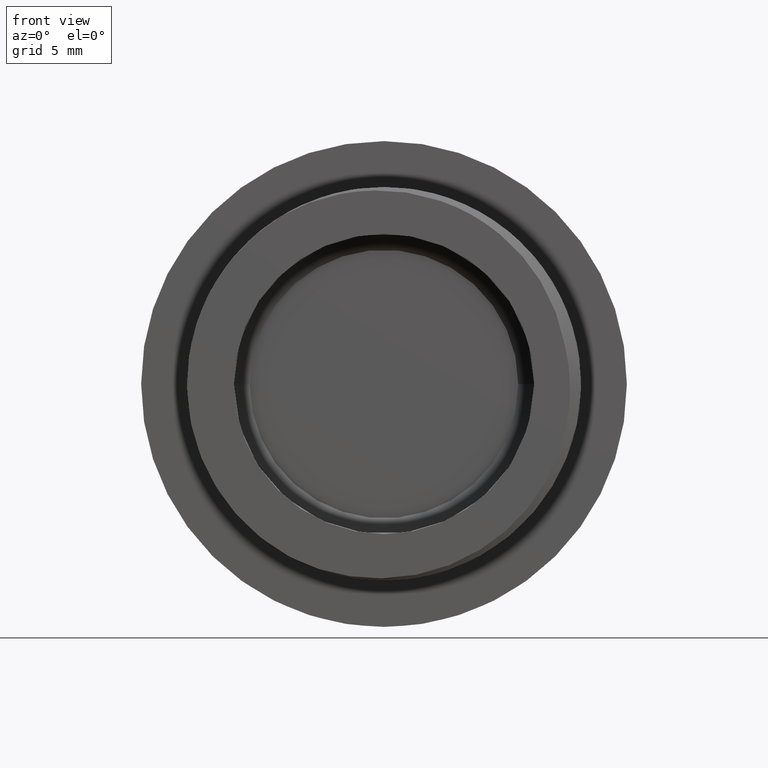
[diagram: clean part render]
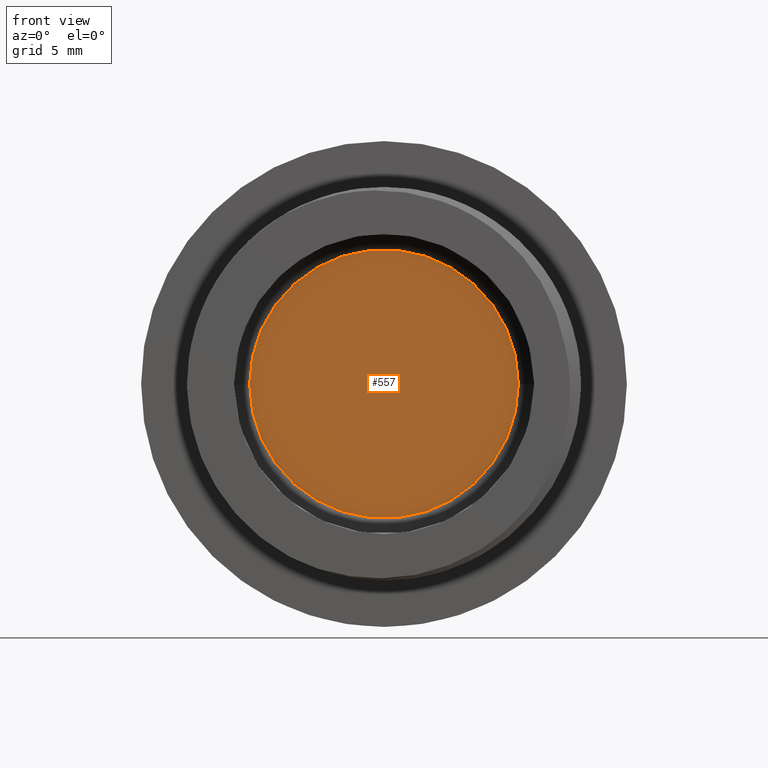
[diagram: same view with one face highlighted and labeled with its STEP entity id]
A machine part, front view. The second image highlights one B-rep face of the part: STEP entity #557.
In plain terms, the highlighted planar face has unit normal (0, 1, 0).
Its self-contained STEP definition (entity closure, byte-faithful):
#29 = EDGE_LOOP ( 'NONE', ( #93, #94 ) ) ;
#40 = VERTEX_POINT ( 'NONE', #2034 ) ;
#42 = VERTEX_POINT ( 'NONE', #2087 ) ;
#93 = ORIENTED_EDGE ( 'NONE', *, *, #464, .T. ) ;
#94 = ORIENTED_EDGE ( 'NONE', *, *, #541, .T. ) ;
#464 = EDGE_CURVE ( 'NONE', #42, #40, #1638, .T. ) ;
#541 = EDGE_CURVE ( 'NONE', #40, #42, #1690, .T. ) ;
#557 = ADVANCED_FACE ( 'NONE', ( #1000 ), #1027, .F. ) ;
#709 = DIRECTION ( 'NONE',  ( -1.015638558699706200E-016, -1.000000000000000000, -5.078192793498531200E-017 ) ) ;
#714 = DIRECTION ( 'NONE',  ( 1.000000000000000000, -1.140853028573736700E-016, 0.0000000000000000000 ) ) ;
#738 = CARTESIAN_POINT ( 'NONE',  ( 9.631722501018265300E-017, 7.799999999999998900, 4.815861250509132600E-017 ) ) ;
#1000 = FACE_OUTER_BOUND ( 'NONE', #29, .T. ) ;
#1027 = PLANE ( 'NONE',  #1723 ) ;
#1028 = DIRECTION ( 'NONE',  ( 0.0000000000000000000, -0.0000000000000000000, 1.000000000000000000 ) ) ;
#1054 = CARTESIAN_POINT ( 'NONE',  ( -7.602747385197858400, 7.799999999999999800, 0.0000000000000000000 ) ) ;
#1061 = DIRECTION ( 'NONE',  ( 0.0000000000000000000, 1.000000000000000000, 0.0000000000000000000 ) ) ;
#1523 = CARTESIAN_POINT ( 'NONE',  ( 9.631722501018265300E-017, 7.799999999999998900, 4.815861250509132600E-017 ) ) ;
#1528 = DIRECTION ( 'NONE',  ( -1.015638558699706200E-016, -1.000000000000000000, -5.078192793498531200E-017 ) ) ;
#1533 = DIRECTION ( 'NONE',  ( 1.000000000000000000, -1.140853028573736700E-016, 0.0000000000000000000 ) ) ;
#1631 = AXIS2_PLACEMENT_3D ( 'NONE', #1523, #1528, #1533 ) ;
#1638 = CIRCLE ( 'NONE', #1631, 7.602747385197859300 ) ;
#1690 = CIRCLE ( 'NONE', #1700, 7.602747385197859300 ) ;
#1700 = AXIS2_PLACEMENT_3D ( 'NONE', #738, #709, #714 ) ;
#1723 = AXIS2_PLACEMENT_3D ( 'NONE', #1054, #1061, #1028 ) ;
#2034 = CARTESIAN_POINT ( 'NONE',  ( -7.602747385197859300, 7.799999999999999800, 1.012541365857792200E-015 ) ) ;
#2087 = CARTESIAN_POINT ( 'NONE',  ( 7.602747385197859300, 7.799999999999998000, 4.815861250509132600E-017 ) ) ;